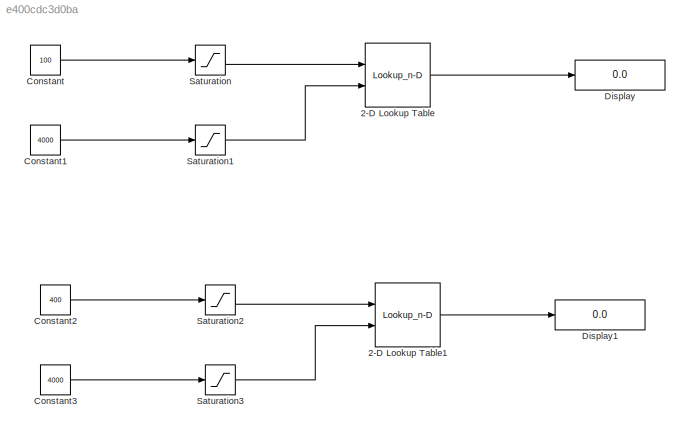
MODEL slx_e400cdc3d0ba
KIND model
CONFIG AbsTol = auto
CONFIG EnableMultiTasking = off
CONFIG FixedStep = auto
CONFIG MaxStep = auto
CONFIG MinStep = auto
CONFIG RelTol = 1e-3
CONFIG SampleTimeConstraint = Unconstrained
CONFIG Solver = VariableStepAuto
CONFIG SolverName = VariableStepAuto
CONFIG StartTime = 0.0
CONFIG StopTime = 10.0
BLOCK [Lookup_n-D] 2-D Lookup Table
  BreakpointsForDimension1 = datMotor.eta_torque
  BreakpointsForDimension2 = datMotor.eta_speed
  InternalRulePriority = Speed
  Ports = [2, 1]
  RndMeth = Simplest
  Table = datMotor.eta_val
BLOCK [Lookup_n-D] 2-D Lookup Table1
  BreakpointsForDimension1 = datMotor.vbus
  BreakpointsForDimension2 = datMotor.rpm
  InternalRulePriority = Speed
  Ports = [2, 1]
  RndMeth = Simplest
  Table = datMotor.maxtorque
BLOCK [Constant] Constant
  Value = 100
BLOCK [Constant] Constant1
  Value = 4000
BLOCK [Constant] Constant2
  Value = 400
BLOCK [Constant] Constant3
  Value = 4000
BLOCK [Display] Display
  Decimation = 1
  Ports = [1]
BLOCK [Display] Display1
  Decimation = 1
  Ports = [1]
BLOCK [Saturate] Saturation
  InputPortMap = u0
  LowerLimit = 0
  Ports = [1, 1]
  UpperLimit = 325
BLOCK [Saturate] Saturation1
  InputPortMap = u0
  LowerLimit = 0
  Ports = [1, 1]
  UpperLimit = 10000
BLOCK [Saturate] Saturation2
  InputPortMap = u0
  LowerLimit = 250
  Ports = [1, 1]
  UpperLimit = 450
BLOCK [Saturate] Saturation3
  InputPortMap = u0
  LowerLimit = 0
  Ports = [1, 1]
  UpperLimit = 10000
LINE 2-D Lookup Table1:1 -> Display1:1
LINE 2-D Lookup Table:1 -> Display:1
LINE Constant1:1 -> Saturation1:1
LINE Constant2:1 -> Saturation2:1
LINE Constant3:1 -> Saturation3:1
LINE Constant:1 -> Saturation:1
LINE Saturation1:1 -> 2-D Lookup Table:2
LINE Saturation2:1 -> 2-D Lookup Table1:1
LINE Saturation3:1 -> 2-D Lookup Table1:2
LINE Saturation:1 -> 2-D Lookup Table:1
